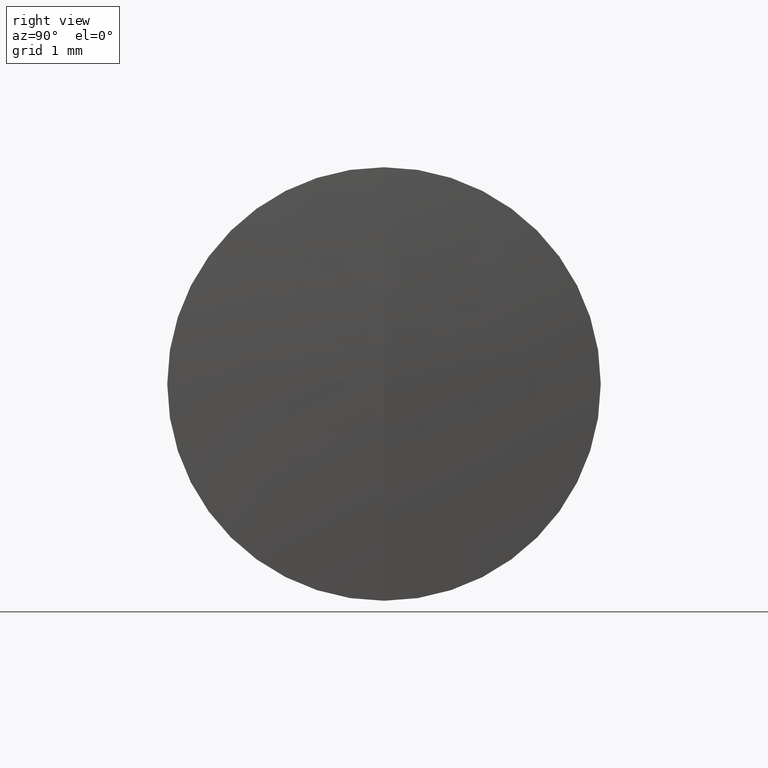
[diagram: clean part render]
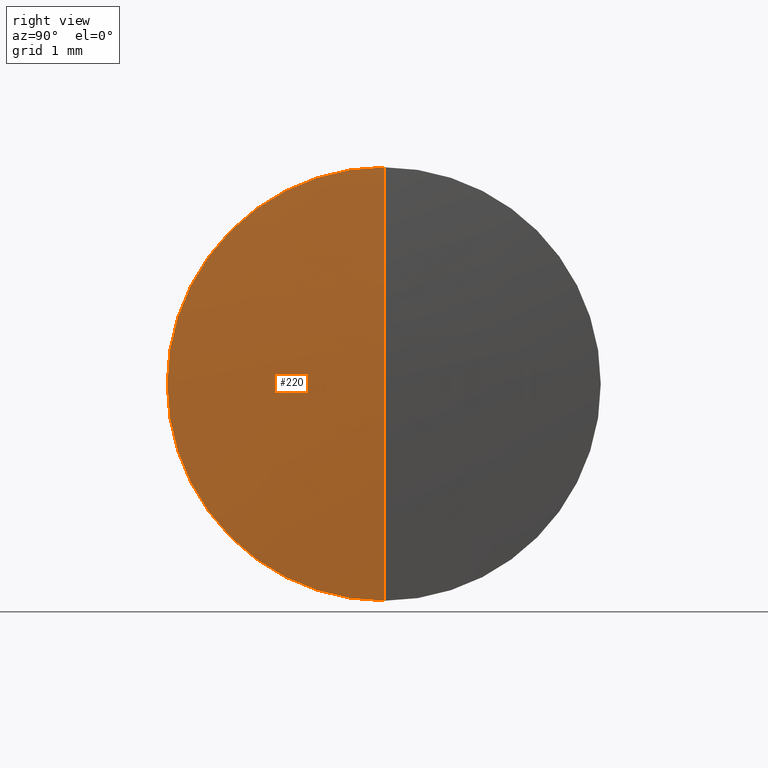
[diagram: same view with one face highlighted and labeled with its STEP entity id]
A machine part, right view. The second image highlights one B-rep face of the part: STEP entity #220.
In plain terms, the highlighted spherical surface has radius 36 mm.
Its self-contained STEP definition (entity closure, byte-faithful):
#2 = DIRECTION ( 'NONE',  ( 0.0000000000000000000, -1.000000000000000000, 0.0000000000000000000 ) ) ;
#3 = CARTESIAN_POINT ( 'NONE',  ( 261.3321490580823900, 0.0000000000000000000, 2.204364238465235800E-015 ) ) ;
#21 = CARTESIAN_POINT ( 'NONE',  ( 225.3321490580823900, 0.0000000000000000000, 0.0000000000000000000 ) ) ;
#30 = CIRCLE ( 'NONE', #247, 2.500000000000030200 ) ;
#37 = DIRECTION ( 'NONE',  ( 0.0000000000000000000, 1.000000000000000000, 0.0000000000000000000 ) ) ;
#40 = CIRCLE ( 'NONE', #227, 36.00000000000000700 ) ;
#43 = CARTESIAN_POINT ( 'NONE',  ( 261.2452385937934300, 0.0000000000000000000, 2.500000000000030200 ) ) ;
#44 = EDGE_CURVE ( 'NONE', #159, #163, #30, .T. ) ;
#71 = CARTESIAN_POINT ( 'NONE',  ( 261.2452385937934300, 3.061616997868419600E-016, -2.500000000000030200 ) ) ;
#75 = CIRCLE ( 'NONE', #347, 36.00000000000000700 ) ;
#76 = EDGE_CURVE ( 'NONE', #326, #159, #40, .T. ) ;
#81 = AXIS2_PLACEMENT_3D ( 'NONE', #21, #37, #331 ) ;
#124 = CARTESIAN_POINT ( 'NONE',  ( 225.3321490580823900, 0.0000000000000000000, 0.0000000000000000000 ) ) ;
#159 = VERTEX_POINT ( 'NONE', #71 ) ;
#163 = VERTEX_POINT ( 'NONE', #43 ) ;
#171 = DIRECTION ( 'NONE',  ( -1.000000000000000000, -0.0000000000000000000, -0.0000000000000000000 ) ) ;
#178 = DIRECTION ( 'NONE',  ( -0.0000000000000000000, 1.000000000000000000, 1.224646799147353200E-016 ) ) ;
#192 = DIRECTION ( 'NONE',  ( 0.0000000000000000000, -1.224646799147353000E-016, 1.000000000000000000 ) ) ;
#198 = FACE_OUTER_BOUND ( 'NONE', #302, .T. ) ;
#206 = CARTESIAN_POINT ( 'NONE',  ( 225.3321490580823900, 0.0000000000000000000, 0.0000000000000000000 ) ) ;
#220 = ADVANCED_FACE ( 'NONE', ( #198 ), #342, .T. ) ;
#227 = AXIS2_PLACEMENT_3D ( 'NONE', #206, #178, #192 ) ;
#235 = DIRECTION ( 'NONE',  ( 0.0000000000000000000, 0.0000000000000000000, -1.000000000000000000 ) ) ;
#247 = AXIS2_PLACEMENT_3D ( 'NONE', #264, #171, #327 ) ;
#250 = EDGE_CURVE ( 'NONE', #326, #163, #75, .T. ) ;
#264 = CARTESIAN_POINT ( 'NONE',  ( 261.2452385937934300, 0.0000000000000000000, 0.0000000000000000000 ) ) ;
#286 = ORIENTED_EDGE ( 'NONE', *, *, #76, .F. ) ;
#302 = EDGE_LOOP ( 'NONE', ( #286, #314, #344 ) ) ;
#314 = ORIENTED_EDGE ( 'NONE', *, *, #250, .T. ) ;
#326 = VERTEX_POINT ( 'NONE', #3 ) ;
#327 = DIRECTION ( 'NONE',  ( 0.0000000000000000000, 0.0000000000000000000, 1.000000000000000000 ) ) ;
#331 = DIRECTION ( 'NONE',  ( 0.0000000000000000000, 0.0000000000000000000, 1.000000000000000000 ) ) ;
#342 = SPHERICAL_SURFACE ( 'NONE', #81, 36.00000000000000700 ) ;
#344 = ORIENTED_EDGE ( 'NONE', *, *, #44, .F. ) ;
#347 = AXIS2_PLACEMENT_3D ( 'NONE', #124, #2, #235 ) ;